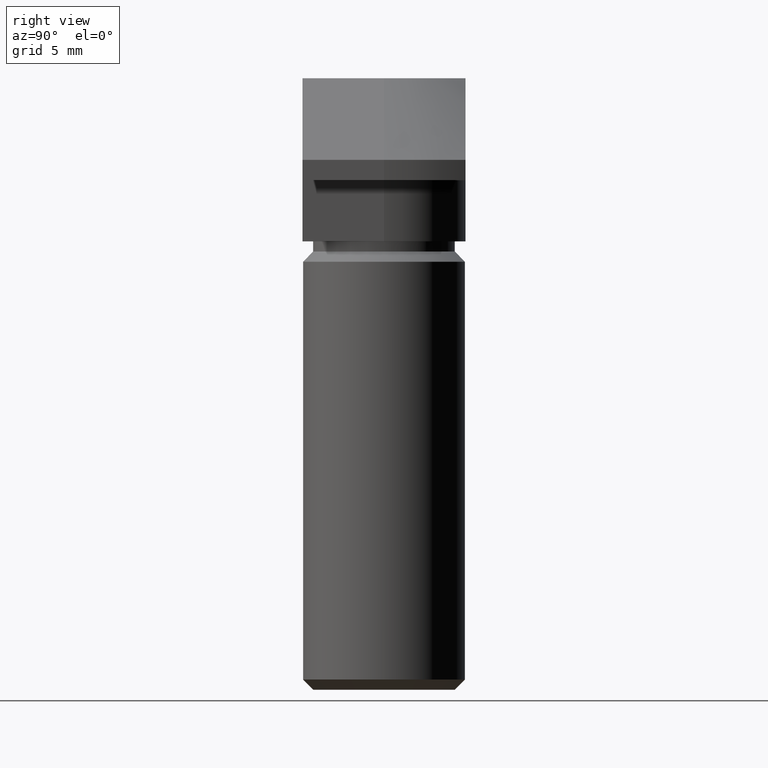
[diagram: clean part render]
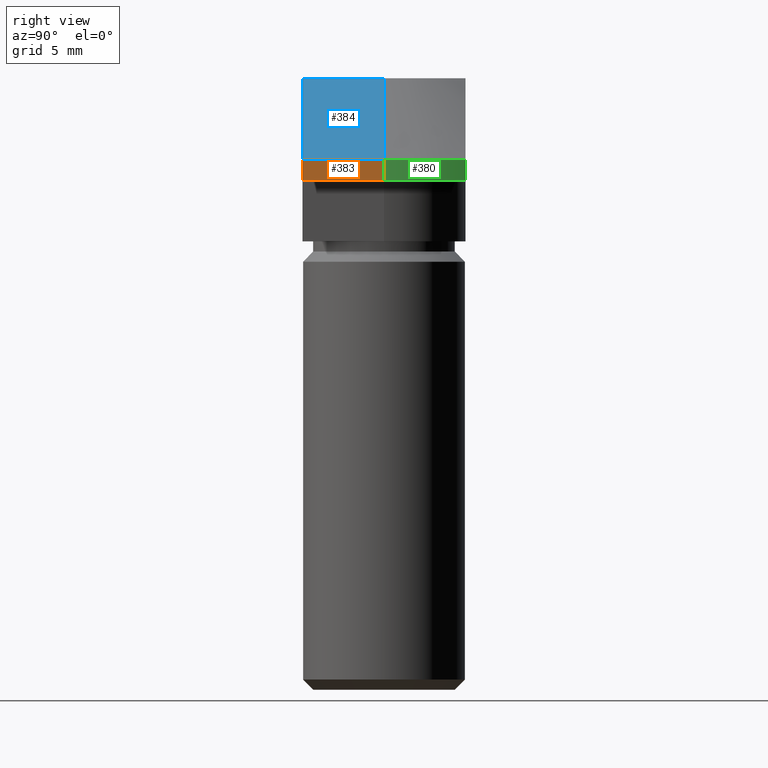
[diagram: same view with three faces highlighted in distinct colors, each labeled with its STEP entity id]
A machine part, right view with three faces highlighted in distinct colors.
Their STEP definitions:

[orange] entity #383 — the highlighted planar face has unit normal (1, 0, 0).
#33=LINE('',#605,#67);
#37=LINE('',#620,#71);
#41=LINE('',#637,#75);
#42=LINE('',#638,#76);
#67=VECTOR('',#494,4.);
#71=VECTOR('',#506,1.);
#75=VECTOR('',#520,4.);
#76=VECTOR('',#521,1.);
#91=PLANE('',#423);
#125=FACE_OUTER_BOUND('',#153,.T.);
#153=EDGE_LOOP('',(#321,#322,#323,#324));
#196=VERTEX_POINT('',#602);
#197=VERTEX_POINT('',#604);
#201=VERTEX_POINT('',#615);
#206=VERTEX_POINT('',#636);
#237=EDGE_CURVE('',#196,#197,#33,.T.);
#244=EDGE_CURVE('',#201,#196,#37,.T.);
#251=EDGE_CURVE('',#201,#206,#41,.T.);
#252=EDGE_CURVE('',#197,#206,#42,.T.);
#321=ORIENTED_EDGE('',*,*,#244,.F.);
#322=ORIENTED_EDGE('',*,*,#251,.T.);
#323=ORIENTED_EDGE('',*,*,#252,.F.);
#324=ORIENTED_EDGE('',*,*,#237,.F.);
#383=ADVANCED_FACE('',(#125),#91,.T.);
#423=AXIS2_PLACEMENT_3D('',#635,#518,#519);
#494=DIRECTION('',(0.,-1.,0.));
#506=DIRECTION('',(0.,0.,-1.));
#518=DIRECTION('center_axis',(1.,0.,0.));
#519=DIRECTION('ref_axis',(0.,0.,-1.));
#520=DIRECTION('',(0.,-1.,0.));
#521=DIRECTION('',(0.,0.,1.));
#602=CARTESIAN_POINT('',(9.,0.,-5.));
#604=CARTESIAN_POINT('',(9.,-4.,-5.));
#605=CARTESIAN_POINT('',(9.,0.,-5.));
#615=CARTESIAN_POINT('',(9.,0.,-4.));
#620=CARTESIAN_POINT('',(9.,0.,-4.5));
#635=CARTESIAN_POINT('Origin',(9.,0.,-4.));
#636=CARTESIAN_POINT('',(9.,-4.,-4.));
#637=CARTESIAN_POINT('',(9.,0.,-4.));
#638=CARTESIAN_POINT('',(9.,-4.,-5.));

[blue] entity #384 — the highlighted planar face has unit normal (0.7071, 0, 0.7071).
#35=LINE('',#616,#69);
#41=LINE('',#637,#75);
#43=LINE('',#641,#77);
#44=LINE('',#642,#78);
#69=VECTOR('',#500,5.65685424949238);
#75=VECTOR('',#520,4.);
#77=VECTOR('',#524,4.);
#78=VECTOR('',#525,5.65685424949238);
#92=PLANE('',#424);
#126=FACE_OUTER_BOUND('',#154,.T.);
#154=EDGE_LOOP('',(#325,#326,#327,#328));
#200=VERTEX_POINT('',#613);
#201=VERTEX_POINT('',#615);
#206=VERTEX_POINT('',#636);
#207=VERTEX_POINT('',#640);
#241=EDGE_CURVE('',#200,#201,#35,.T.);
#251=EDGE_CURVE('',#201,#206,#41,.T.);
#253=EDGE_CURVE('',#200,#207,#43,.T.);
#254=EDGE_CURVE('',#206,#207,#44,.T.);
#325=ORIENTED_EDGE('',*,*,#241,.F.);
#326=ORIENTED_EDGE('',*,*,#253,.T.);
#327=ORIENTED_EDGE('',*,*,#254,.F.);
#328=ORIENTED_EDGE('',*,*,#251,.F.);
#384=ADVANCED_FACE('',(#126),#92,.T.);
#424=AXIS2_PLACEMENT_3D('',#639,#522,#523);
#500=DIRECTION('',(0.707106781186547,0.,-0.707106781186548));
#520=DIRECTION('',(0.,-1.,0.));
#522=DIRECTION('center_axis',(0.707106781186548,0.,0.707106781186547));
#523=DIRECTION('ref_axis',(0.707106781186547,0.,-0.707106781186548));
#524=DIRECTION('',(0.,-1.,0.));
#525=DIRECTION('',(-0.707106781186547,0.,0.707106781186548));
#613=CARTESIAN_POINT('',(5.,0.,0.));
#615=CARTESIAN_POINT('',(9.,0.,-4.));
#616=CARTESIAN_POINT('',(7.,0.,-2.));
#636=CARTESIAN_POINT('',(9.,-4.,-4.));
#637=CARTESIAN_POINT('',(9.,0.,-4.));
#639=CARTESIAN_POINT('Origin',(5.,0.,0.));
#640=CARTESIAN_POINT('',(5.,-4.,0.));
#641=CARTESIAN_POINT('',(5.,0.,1.96261524244674E-16));
#642=CARTESIAN_POINT('',(9.,-4.,-4.));

[green] entity #380 — the highlighted cylindrical surface (partial cylindrical patch) has radius 9 mm, axis along (0, 0, 1).
#36=LINE('',#619,#70);
#37=LINE('',#620,#71);
#70=VECTOR('',#505,1.);
#71=VECTOR('',#506,1.);
#102=CYLINDRICAL_SURFACE('',#418,9.);
#122=FACE_OUTER_BOUND('',#150,.T.);
#150=EDGE_LOOP('',(#309,#310,#311,#312));
#170=CIRCLE('',#414,9.);
#172=CIRCLE('',#417,9.);
#195=VERTEX_POINT('',#600);
#196=VERTEX_POINT('',#602);
#199=VERTEX_POINT('',#609);
#201=VERTEX_POINT('',#615);
#236=EDGE_CURVE('',#195,#196,#170,.T.);
#242=EDGE_CURVE('',#201,#199,#172,.T.);
#243=EDGE_CURVE('',#199,#195,#36,.T.);
#244=EDGE_CURVE('',#201,#196,#37,.T.);
#309=ORIENTED_EDGE('',*,*,#243,.F.);
#310=ORIENTED_EDGE('',*,*,#242,.F.);
#311=ORIENTED_EDGE('',*,*,#244,.T.);
#312=ORIENTED_EDGE('',*,*,#236,.F.);
#380=ADVANCED_FACE('',(#122),#102,.T.);
#414=AXIS2_PLACEMENT_3D('',#603,#492,#493);
#417=AXIS2_PLACEMENT_3D('',#617,#501,#502);
#418=AXIS2_PLACEMENT_3D('',#618,#503,#504);
#492=DIRECTION('center_axis',(0.,0.,-1.));
#493=DIRECTION('ref_axis',(1.,0.,0.));
#501=DIRECTION('center_axis',(2.9781283147877E-16,2.9781283147877E-16,1.));
#502=DIRECTION('ref_axis',(1.,1.2335811384724E-16,-3.08395284618099E-16));
#503=DIRECTION('center_axis',(0.,0.,1.));
#504=DIRECTION('ref_axis',(1.,0.,0.));
#505=DIRECTION('',(0.,0.,-1.));
#506=DIRECTION('',(0.,0.,-1.));
#600=CARTESIAN_POINT('',(8.06225774829855,4.,-5.));
#602=CARTESIAN_POINT('',(9.,0.,-5.));
#603=CARTESIAN_POINT('Origin',(0.,0.,-5.));
#609=CARTESIAN_POINT('',(8.06225774829855,4.,-4.));
#615=CARTESIAN_POINT('',(9.,0.,-4.));
#617=CARTESIAN_POINT('Origin',(-1.11022302462516E-15,-1.11022302462516E-15,
-4.));
#618=CARTESIAN_POINT('Origin',(0.,0.,-4.5));
#619=CARTESIAN_POINT('',(8.06225774829855,4.,-4.5));
#620=CARTESIAN_POINT('',(9.,0.,-4.5));